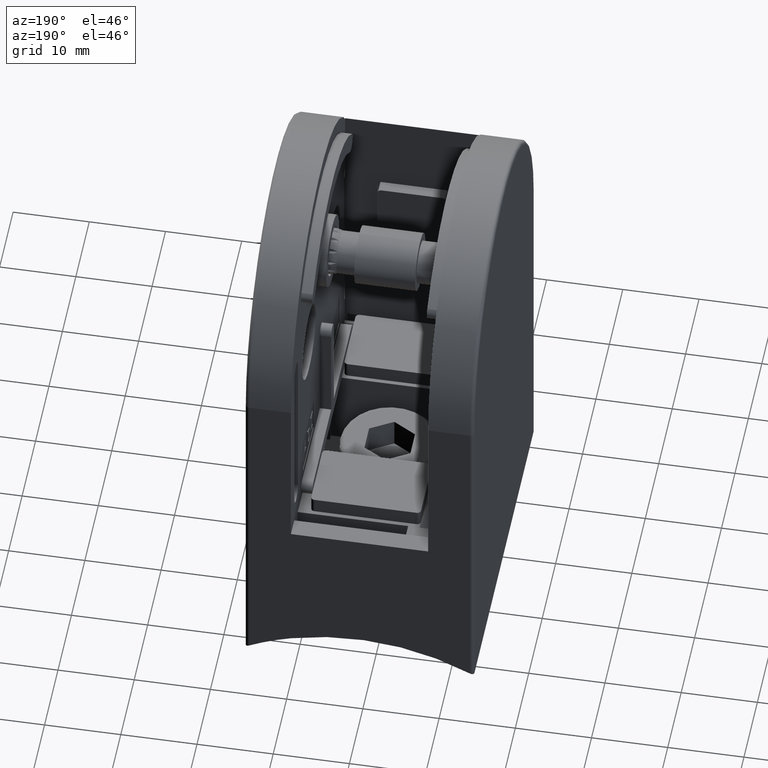
[diagram: clean part render]
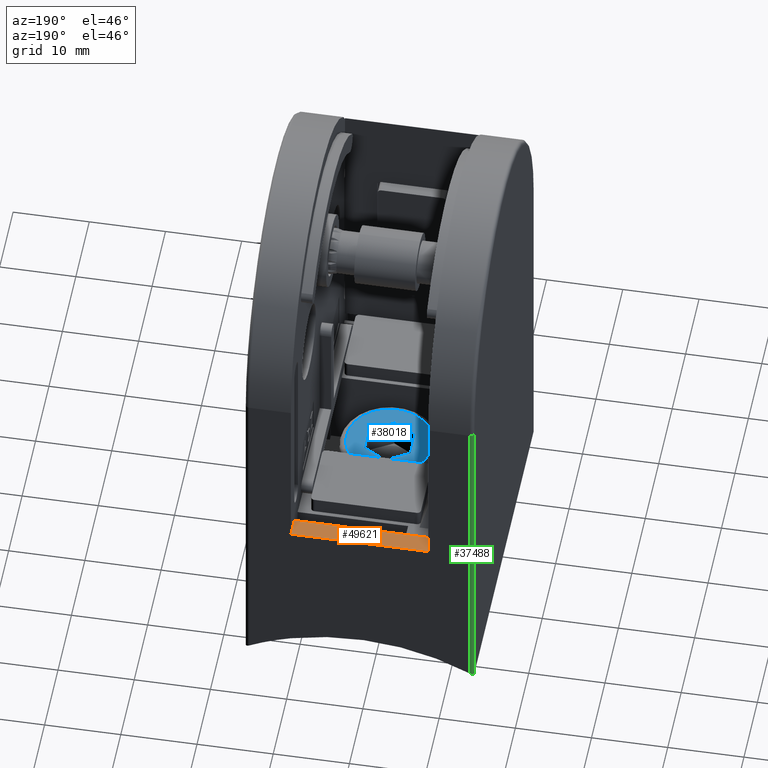
[diagram: same view with three faces highlighted in distinct colors, each labeled with its STEP entity id]
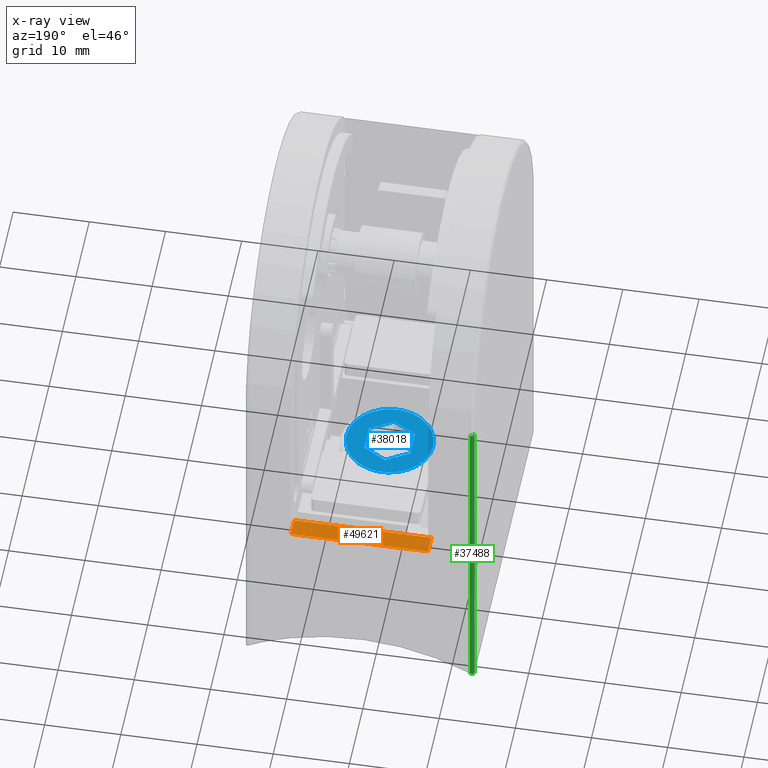
[diagram: x-ray of the same camera — body ghosted, the three highlighted faces saturated]
A machine part, auxiliary view with three faces highlighted in distinct colors.
The next image is the same camera in x-ray (body ghosted, the three faces saturated) — at least one of them is partly hidden behind the body in this view.
Their STEP definitions:

[orange] entity #49621 — the highlighted planar face has unit normal (0, 0, -1).
#954 = CARTESIAN_POINT ( 'NONE',  ( 24.00000000000000000, 22.50000000000001776, 17.99999999999999645 ) ) ;
#2138 = CARTESIAN_POINT ( 'NONE',  ( 24.00000000000000000, 22.50000000000001776, 17.99999999999999645 ) ) ;
#2818 = VERTEX_POINT ( 'NONE', #29339 ) ;
#10477 = VERTEX_POINT ( 'NONE', #48234 ) ;
#12170 = LINE ( 'NONE', #53679, #14169 ) ;
#14169 = VECTOR ( 'NONE', #60042, 1000.000000000000000 ) ;
#17864 = EDGE_CURVE ( 'NONE', #2818, #42221, #12170, .T. ) ;
#20123 = CARTESIAN_POINT ( 'NONE',  ( 6.000000000000000000, 20.00000000000002132, 17.99999999999999645 ) ) ;
#21921 = EDGE_CURVE ( 'NONE', #10477, #42221, #50066, .T. ) ;
#22014 = EDGE_CURVE ( 'NONE', #44406, #10477, #60942, .T. ) ;
#23131 = AXIS2_PLACEMENT_3D ( 'NONE', #80646, #35751, #48837 ) ;
#23357 = LINE ( 'NONE', #2138, #41248 ) ;
#29317 = DIRECTION ( 'NONE',  ( -1.000000000000000000, -0.000000000000000000, -0.000000000000000000 ) ) ;
#29339 = CARTESIAN_POINT ( 'NONE',  ( 6.000000000000000000, 22.50000000000001421, 17.99999999999998224 ) ) ;
#35751 = DIRECTION ( 'NONE',  ( 0.000000000000000000, 0.000000000000000000, -1.000000000000000000 ) ) ;
#41248 = VECTOR ( 'NONE', #29317, 1000.000000000000000 ) ;
#42221 = VERTEX_POINT ( 'NONE', #20123 ) ;
#44082 = VECTOR ( 'NONE', #75781, 1000.000000000000000 ) ;
#44406 = VERTEX_POINT ( 'NONE', #954 ) ;
#48234 = CARTESIAN_POINT ( 'NONE',  ( 24.00000000000000000, 20.00000000000002132, 17.99999999999999645 ) ) ;
#48837 = DIRECTION ( 'NONE',  ( -1.000000000000000000, 0.000000000000000000, -0.000000000000000000 ) ) ;
#49621 = ADVANCED_FACE ( 'NONE', ( #74744 ), #74296, .F. ) ;
#50066 = LINE ( 'NONE', #68365, #75764 ) ;
#50901 = DIRECTION ( 'NONE',  ( -1.000000000000000000, -0.000000000000000000, -0.000000000000000000 ) ) ;
#53679 = CARTESIAN_POINT ( 'NONE',  ( 6.000000000000000000, 20.00000000000002132, 17.99999999999999645 ) ) ;
#54917 = ORIENTED_EDGE ( 'NONE', *, *, #17864, .T. ) ;
#56890 = ORIENTED_EDGE ( 'NONE', *, *, #22014, .F. ) ;
#57134 = ORIENTED_EDGE ( 'NONE', *, *, #21921, .F. ) ;
#59851 = EDGE_CURVE ( 'NONE', #44406, #2818, #23357, .T. ) ;
#60042 = DIRECTION ( 'NONE',  ( -0.000000000000000000, -1.000000000000000000, -0.000000000000000000 ) ) ;
#60942 = LINE ( 'NONE', #63643, #44082 ) ;
#63643 = CARTESIAN_POINT ( 'NONE',  ( 24.00000000000000000, 20.00000000000002132, 17.99999999999999645 ) ) ;
#68365 = CARTESIAN_POINT ( 'NONE',  ( 24.00000000000000000, 20.00000000000002132, 17.99999999999999645 ) ) ;
#73874 = ORIENTED_EDGE ( 'NONE', *, *, #59851, .T. ) ;
#74296 = PLANE ( 'NONE',  #23131 ) ;
#74744 = FACE_OUTER_BOUND ( 'NONE', #76153, .T. ) ;
#75764 = VECTOR ( 'NONE', #50901, 1000.000000000000000 ) ;
#75781 = DIRECTION ( 'NONE',  ( -0.000000000000000000, -1.000000000000000000, -0.000000000000000000 ) ) ;
#76153 = EDGE_LOOP ( 'NONE', ( #54917, #57134, #56890, #73874 ) ) ;
#80646 = CARTESIAN_POINT ( 'NONE',  ( 24.00000000000000000, 20.00000000000002132, 17.99999999999999645 ) ) ;

[blue] entity #38018 — the highlighted planar face has unit normal (-0, 0, 1).
#312 = LINE ( 'NONE', #11577, #65836 ) ;
#429 = CARTESIAN_POINT ( 'NONE',  ( 0.000000000000000000, 3.475648620521541776, -6.722053469410127491E-15 ) ) ;
#1002 = CARTESIAN_POINT ( 'NONE',  ( -0.000000000000000000, -1.737824310260782656, -3.010000000000000231 ) ) ;
#2478 = VERTEX_POINT ( 'NONE', #35273 ) ;
#2623 = VERTEX_POINT ( 'NONE', #33715 ) ;
#3610 = VECTOR ( 'NONE', #46613, 1000.000000000000227 ) ;
#3980 = ORIENTED_EDGE ( 'NONE', *, *, #61998, .T. ) ;
#6739 = DIRECTION ( 'NONE',  ( -0.000000000000000000, -0.5000000000000009992, -0.8660254037844380415 ) ) ;
#7230 = DIRECTION ( 'NONE',  ( -1.000000000000000000, -0.000000000000000000, -0.000000000000000000 ) ) ;
#9969 = CARTESIAN_POINT ( 'NONE',  ( 0.000000000000000000, -1.737824310260774219, 3.009999999999999787 ) ) ;
#11577 = CARTESIAN_POINT ( 'NONE',  ( 0.000000000000000000, 3.475648620521541776, -6.722053469410127491E-15 ) ) ;
#12130 = VECTOR ( 'NONE', #54227, 1000.000000000000000 ) ;
#13024 = LINE ( 'NONE', #45395, #73575 ) ;
#17808 = EDGE_LOOP ( 'NONE', ( #79475, #36770, #54319, #63387, #36016, #67337 ) ) ;
#18526 = LINE ( 'NONE', #51891, #3610 ) ;
#22676 = CARTESIAN_POINT ( 'NONE',  ( 0.000000000000000000, 1.737824310260764227, -3.010000000000003784 ) ) ;
#22923 = EDGE_CURVE ( 'NONE', #37384, #2623, #28101, .T. ) ;
#24909 = PLANE ( 'NONE',  #72307 ) ;
#25771 = EDGE_CURVE ( 'NONE', #54801, #41459, #18526, .T. ) ;
#28101 = LINE ( 'NONE', #429, #47988 ) ;
#30737 = DIRECTION ( 'NONE',  ( 0.000000000000000000, -0.5000000000000012212, -0.8660254037844380415 ) ) ;
#32004 = LINE ( 'NONE', #9969, #12130 ) ;
#32185 = VERTEX_POINT ( 'NONE', #62737 ) ;
#33715 = CARTESIAN_POINT ( 'NONE',  ( 0.000000000000000000, 1.737824310260772886, 3.009999999999995790 ) ) ;
#33743 = CARTESIAN_POINT ( 'NONE',  ( 0.000000000000000000, 3.475648620521541776, -6.722053469410127491E-15 ) ) ;
#34319 = FACE_OUTER_BOUND ( 'NONE', #45602, .T. ) ;
#35273 = CARTESIAN_POINT ( 'NONE',  ( 0.000000000000000000, 0.000000000000000000, 5.699999999999999289 ) ) ;
#36016 = ORIENTED_EDGE ( 'NONE', *, *, #65425, .F. ) ;
#36770 = ORIENTED_EDGE ( 'NONE', *, *, #44559, .F. ) ;
#37384 = VERTEX_POINT ( 'NONE', #33743 ) ;
#38018 = ADVANCED_FACE ( 'NONE', ( #60159, #34319 ), #24909, .T. ) ;
#39239 = VECTOR ( 'NONE', #73442, 1000.000000000000000 ) ;
#40985 = CIRCLE ( 'NONE', #65811, 5.699999999999999289 ) ;
#41459 = VERTEX_POINT ( 'NONE', #1002 ) ;
#42592 = CARTESIAN_POINT ( 'NONE',  ( 0.000000000000000000, -1.737824310260774219, 3.009999999999999787 ) ) ;
#44559 = EDGE_CURVE ( 'NONE', #69334, #2623, #32004, .T. ) ;
#44844 = DIRECTION ( 'NONE',  ( 0.000000000000000000, -0.4999999999999986677, 0.8660254037844392627 ) ) ;
#44930 = CARTESIAN_POINT ( 'NONE',  ( 0.000000000000000000, 0.000000000000000000, 0.000000000000000000 ) ) ;
#45368 = CARTESIAN_POINT ( 'NONE',  ( 0.000000000000000000, 0.000000000000000000, 0.000000000000000000 ) ) ;
#45395 = CARTESIAN_POINT ( 'NONE',  ( 0.000000000000000000, -1.737824310260774219, 3.009999999999999787 ) ) ;
#45602 = EDGE_LOOP ( 'NONE', ( #3980 ) ) ;
#46613 = DIRECTION ( 'NONE',  ( 0.000000000000000000, 0.4999999999999986677, -0.8660254037844393737 ) ) ;
#47988 = VECTOR ( 'NONE', #44844, 1000.000000000000227 ) ;
#49126 = CARTESIAN_POINT ( 'NONE',  ( -0.000000000000000000, -3.475648620521551102, 1.734723475976807094E-15 ) ) ;
#51891 = CARTESIAN_POINT ( 'NONE',  ( -0.000000000000000000, -3.475648620521551102, 1.734723475976807094E-15 ) ) ;
#54227 = DIRECTION ( 'NONE',  ( 0.000000000000000000, 1.000000000000000000, -1.122992640252029472E-15 ) ) ;
#54319 = ORIENTED_EDGE ( 'NONE', *, *, #75076, .T. ) ;
#54801 = VERTEX_POINT ( 'NONE', #49126 ) ;
#56237 = LINE ( 'NONE', #22676, #39239 ) ;
#60159 = FACE_BOUND ( 'NONE', #17808, .T. ) ;
#61998 = EDGE_CURVE ( 'NONE', #2478, #2478, #40985, .T. ) ;
#62737 = CARTESIAN_POINT ( 'NONE',  ( 0.000000000000000000, 1.737824310260764227, -3.010000000000003784 ) ) ;
#63387 = ORIENTED_EDGE ( 'NONE', *, *, #25771, .T. ) ;
#65425 = EDGE_CURVE ( 'NONE', #32185, #41459, #56237, .T. ) ;
#65811 = AXIS2_PLACEMENT_3D ( 'NONE', #45368, #7230, #70007 ) ;
#65836 = VECTOR ( 'NONE', #30737, 999.9999999999998863 ) ;
#67337 = ORIENTED_EDGE ( 'NONE', *, *, #67942, .F. ) ;
#67942 = EDGE_CURVE ( 'NONE', #37384, #32185, #312, .T. ) ;
#69334 = VERTEX_POINT ( 'NONE', #42592 ) ;
#70007 = DIRECTION ( 'NONE',  ( 0.000000000000000000, 0.000000000000000000, 1.000000000000000000 ) ) ;
#70442 = DIRECTION ( 'NONE',  ( -0.000000000000000000, 0.000000000000000000, 1.000000000000000000 ) ) ;
#72307 = AXIS2_PLACEMENT_3D ( 'NONE', #44930, #76770, #70442 ) ;
#73442 = DIRECTION ( 'NONE',  ( -0.000000000000000000, -1.000000000000000000, 1.122992640252029472E-15 ) ) ;
#73575 = VECTOR ( 'NONE', #6739, 1000.000000000000000 ) ;
#75076 = EDGE_CURVE ( 'NONE', #69334, #54801, #13024, .T. ) ;
#76770 = DIRECTION ( 'NONE',  ( -1.000000000000000000, 0.000000000000000000, -0.000000000000000000 ) ) ;
#79475 = ORIENTED_EDGE ( 'NONE', *, *, #22923, .T. ) ;

[green] entity #37488 — the highlighted cylindrical surface (edge-blend (fillet) strip) has radius 0.5 mm, axis along (0, -0, 1).
#2177 = LINE ( 'NONE', #26679, #33001 ) ;
#4456 = CARTESIAN_POINT ( 'NONE',  ( 0.4999999999999970024, 22.50000000000002132, -3.715694637460201122 ) ) ;
#7153 = ORIENTED_EDGE ( 'NONE', *, *, #63469, .F. ) ;
#7908 = VERTEX_POINT ( 'NONE', #76076 ) ;
#8855 = VERTEX_POINT ( 'NONE', #33927 ) ;
#9199 = LINE ( 'NONE', #16690, #41023 ) ;
#11059 = CARTESIAN_POINT ( 'NONE',  ( 0.4999999999999970024, 22.50000000000002132, -3.715694637460201122 ) ) ;
#13307 = B_SPLINE_CURVE_WITH_KNOTS ( 'NONE', 3,
 ( #80726, #23595, #68012, #55342, #42505, #11059 ),
 .UNSPECIFIED., .F., .F.,
 ( 4, 2, 4 ),
 ( 3.507436962711235222E-18, 0.0004196310551618201066, 0.0008392621103236366353 ),
 .UNSPECIFIED. ) ;
#14362 = CIRCLE ( 'NONE', #77203, 0.5000000000000000000 ) ;
#15673 = VERTEX_POINT ( 'NONE', #4456 ) ;
#15727 = ORIENTED_EDGE ( 'NONE', *, *, #79532, .F. ) ;
#16690 = CARTESIAN_POINT ( 'NONE',  ( 0.000000000000000000, 22.00000000000000711, 40.49999999999998579 ) ) ;
#17959 = EDGE_CURVE ( 'NONE', #8855, #7908, #9199, .T. ) ;
#20531 = FACE_OUTER_BOUND ( 'NONE', #54409, .T. ) ;
#21643 = ORIENTED_EDGE ( 'NONE', *, *, #54554, .F. ) ;
#22135 = CARTESIAN_POINT ( 'NONE',  ( 0.5000000000000004441, 22.00000000000000711, 40.49999999999998579 ) ) ;
#23595 = CARTESIAN_POINT ( 'NONE',  ( -2.934969162236149689E-16, 22.14203512808353480, -3.996176187792347179 ) ) ;
#26679 = CARTESIAN_POINT ( 'NONE',  ( 0.5000000000000004441, 22.50000000000001776, 8.673617379884035472E-15 ) ) ;
#28214 = VERTEX_POINT ( 'NONE', #56433 ) ;
#33001 = VECTOR ( 'NONE', #51712, 1000.000000000000000 ) ;
#33927 = CARTESIAN_POINT ( 'NONE',  ( 0.000000000000000000, 22.00000000000000711, 40.49999999999998579 ) ) ;
#37488 = ADVANCED_FACE ( 'NONE', ( #20531 ), #48403, .T. ) ;
#39843 = AXIS2_PLACEMENT_3D ( 'NONE', #47419, #60664, #73356 ) ;
#41023 = VECTOR ( 'NONE', #41904, 1000.000000000000000 ) ;
#41904 = DIRECTION ( 'NONE',  ( -0.000000000000000000, 2.569960705150826877E-16, -1.000000000000000000 ) ) ;
#42505 = CARTESIAN_POINT ( 'NONE',  ( 0.3758805443993076256, 22.50000000000001776, -3.783777837738300232 ) ) ;
#47419 = CARTESIAN_POINT ( 'NONE',  ( 0.5000000000000004441, 22.00000000000001776, 8.545119344626492920E-15 ) ) ;
#48403 = CYLINDRICAL_SURFACE ( 'NONE', #39843, 0.5000000000000004441 ) ;
#51712 = DIRECTION ( 'NONE',  ( 0.000000000000000000, -2.569960705150826877E-16, 1.000000000000000000 ) ) ;
#54409 = EDGE_LOOP ( 'NONE', ( #7153, #66307, #21643, #15727 ) ) ;
#54554 = EDGE_CURVE ( 'NONE', #28214, #8855, #14362, .T. ) ;
#55342 = CARTESIAN_POINT ( 'NONE',  ( 0.2532153795702862809, 22.45384064970455995, -3.852343890759654332 ) ) ;
#56433 = CARTESIAN_POINT ( 'NONE',  ( 0.5000000000000004441, 22.50000000000000711, 40.49999999999998579 ) ) ;
#60664 = DIRECTION ( 'NONE',  ( 0.000000000000000000, -2.569960705150826877E-16, 1.000000000000000000 ) ) ;
#63469 = EDGE_CURVE ( 'NONE', #7908, #15673, #13307, .T. ) ;
#66307 = ORIENTED_EDGE ( 'NONE', *, *, #17959, .F. ) ;
#68012 = CARTESIAN_POINT ( 'NONE',  ( 0.06351769917608526828, 22.27632803924385740, -3.959622569378989709 ) ) ;
#73356 = DIRECTION ( 'NONE',  ( 0.000000000000000000, -1.000000000000000000, -2.569960705150834273E-16 ) ) ;
#76076 = CARTESIAN_POINT ( 'NONE',  ( 0.000000000000000000, 22.00000000000002132, -3.996176187792348067 ) ) ;
#77203 = AXIS2_PLACEMENT_3D ( 'NONE', #22135, #78737, #79029 ) ;
#78737 = DIRECTION ( 'NONE',  ( 0.000000000000000000, -0.000000000000000000, 1.000000000000000000 ) ) ;
#79029 = DIRECTION ( 'NONE',  ( 1.000000000000000000, 0.000000000000000000, 0.000000000000000000 ) ) ;
#79532 = EDGE_CURVE ( 'NONE', #15673, #28214, #2177, .T. ) ;
#80726 = CARTESIAN_POINT ( 'NONE',  ( 0.000000000000000000, 22.00000000000002132, -3.996176187792348067 ) ) ;